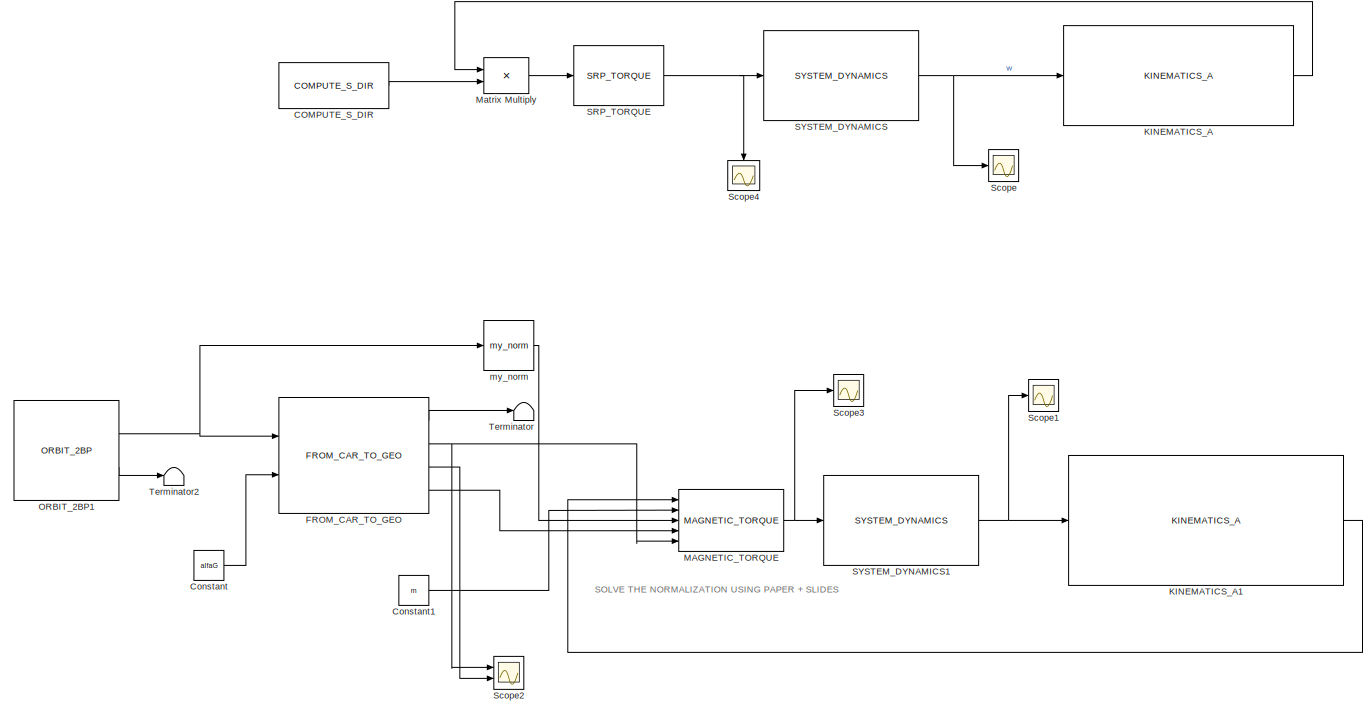
[diagram: root canvas - part 1/2, left side, full height]
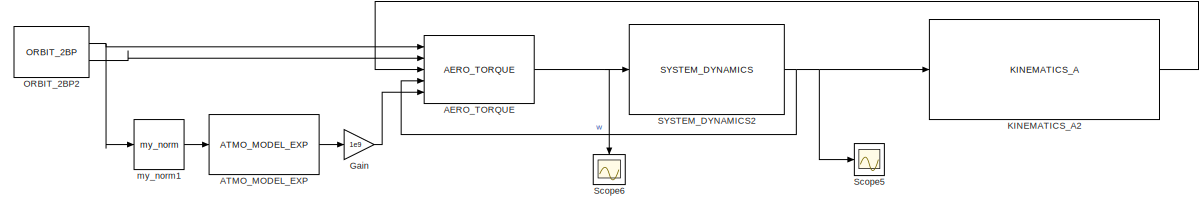
[diagram: root canvas - part 2/2, top right region]
MODEL slx_9527c434d8ad
KIND model
CONFIG AbsTol = auto
CONFIG EnableMultiTasking = off
CONFIG FixedStep = 0.01
CONFIG MaxStep = auto
CONFIG MinStep = auto
CONFIG RelTol = 1e-3
CONFIG SampleTimeConstraint = Unconstrained
CONFIG SolverName = ode8
CONFIG StartTime = 0.0
CONFIG StopTime = 1000
BLOCK [Reference] AERO_TORQUE  REF=environment/AERO_TORQUE  (lib defined in slx_0e64a065ad8c, slx_1a373574b8ee, +3 more)
  Ports = [5, 1]
  SourceBlock = environment/AERO_TORQUE
  SourceProductName = Environment
  SourceType = SubSystem
BLOCK [Reference] ATMO_MODEL_EXP  REF=environment/ATMO_MODEL_EXP  (lib defined in slx_0e64a065ad8c, slx_1a373574b8ee, +3 more)
  Ports = [1, 1]
  SourceBlock = environment/ATMO_MODEL_EXP
  SourceProductName = Environment
  SourceType = SubSystem
BLOCK [Reference] COMPUTE_S_DIR  REF=environment/COMPUTE_S_DIR  (lib defined in slx_0e64a065ad8c, slx_1a373574b8ee, +3 more)
  Ports = [0, 1]
  SourceBlock = environment/COMPUTE_S_DIR
  SourceProductName = Environment
  SourceType = SubSystem
BLOCK [Constant] Constant
  Value = alfaG
BLOCK [Constant] Constant1
  Value = m
BLOCK [Reference] FROM_CAR_TO_GEO  REF=orbit/FROM_CAR_TO_GEO  (lib defined in slx_0abda17b96cb, slx_6e64ef6db262, +1 more)
  Ports = [2, 4]
  SourceBlock = orbit/FROM_CAR_TO_GEO
  SourceProductName = Orbit
  SourceType = SubSystem
BLOCK [Gain] Gain
  Gain = 1e9
BLOCK [Reference] KINEMATICS_A  REF=kinematics/KINEMATICS_A  (lib defined in mdl_2d95649a4485, slx_49f32b38500f, +2 more)
  Ports = [1, 1]
  SourceBlock = kinematics/KINEMATICS_A
  SourceProductName = Kinematics
  SourceType = SubSystem
BLOCK [Reference] KINEMATICS_A1  REF=kinematics/KINEMATICS_A  (lib defined in mdl_2d95649a4485, slx_49f32b38500f, +2 more)
  Ports = [1, 1]
  SourceBlock = kinematics/KINEMATICS_A
  SourceProductName = Kinematics
  SourceType = SubSystem
BLOCK [Reference] KINEMATICS_A2  REF=kinematics/KINEMATICS_A  (lib defined in mdl_2d95649a4485, slx_49f32b38500f, +2 more)
  Ports = [1, 1]
  SourceBlock = kinematics/KINEMATICS_A
  SourceProductName = Kinematics
  SourceType = SubSystem
BLOCK [Reference] MAGNETIC_TORQUE  REF=environment/MAGNETIC_TORQUE  (lib defined in slx_0e64a065ad8c, slx_1a373574b8ee, +3 more)
  Ports = [5, 1]
  SourceBlock = environment/MAGNETIC_TORQUE
  SourceProductName = Environment
  SourceType = SubSystem
BLOCK [Product] Matrix Multiply
  Multiplication = Matrix(*)
  Ports = [2, 1]
BLOCK [Reference] ORBIT_2BP1  REF=orbit/ORBIT_2BP  (lib defined in slx_0abda17b96cb, slx_6e64ef6db262, +1 more)
  Ports = [0, 2]
  SourceBlock = orbit/ORBIT_2BP
  SourceProductName = Orbit
  SourceType = SubSystem
BLOCK [Reference] ORBIT_2BP2  REF=orbit/ORBIT_2BP  (lib defined in slx_0abda17b96cb, slx_6e64ef6db262, +1 more)
  Ports = [0, 2]
  SourceBlock = orbit/ORBIT_2BP
  SourceProductName = Orbit
  SourceType = SubSystem
BLOCK [Reference] SRP_TORQUE  REF=environment/SRP_TORQUE  (lib defined in slx_0e64a065ad8c, slx_1a373574b8ee, +3 more)
  Ports = [1, 1]
  SourceBlock = environment/SRP_TORQUE
  SourceProductName = Environment
  SourceType = SubSystem
BLOCK [Reference] SYSTEM_DYNAMICS  REF=dynamics/SYSTEM_DYNAMICS  (lib defined in slx_06758dd8f563, slx_0a41d2eeeb32, +20 more)
  Ports = [1, 1]
  SourceBlock = dynamics/SYSTEM_DYNAMICS
  SourceProductName = Dynamics
  SourceType = SubSystem
BLOCK [Reference] SYSTEM_DYNAMICS1  REF=dynamics/SYSTEM_DYNAMICS  (lib defined in slx_06758dd8f563, slx_0a41d2eeeb32, +20 more)
  Ports = [1, 1]
  SourceBlock = dynamics/SYSTEM_DYNAMICS
  SourceProductName = Dynamics
  SourceType = SubSystem
BLOCK [Reference] SYSTEM_DYNAMICS2  REF=dynamics/SYSTEM_DYNAMICS  (lib defined in slx_06758dd8f563, slx_0a41d2eeeb32, +20 more)
  Ports = [1, 1]
  SourceBlock = dynamics/SYSTEM_DYNAMICS
  SourceProductName = Dynamics
  SourceType = SubSystem
BLOCK [Scope] Scope
  Floating = off
  NumInputPorts = 1
  Ports = [1]
  ScopeSpecificationString = Simulink.scopes.TimeScopeBlockCfg('CurrentConfiguration', extmgr.ConfigurationSet(extmgr.Configuration('Core','General UI',true),extmgr.Configuration('Core','Source UI',true),extmgr.Configuration('Sources','WiredSimulink',true),extmgr.Configuration('Visuals','Time Domain',true,'SerializedDisplays',{struct('MinYLimReal','-0.9327','MaxYLimReal','0.9327','YLabelReal','','MinYLimMag','0.00000','MaxYLi...<+1422ch>
BLOCK [Scope] Scope1
  Floating = off
  NumInputPorts = 1
  Ports = [1]
  ScopeSpecificationString = Simulink.scopes.TimeScopeBlockCfg('CurrentConfiguration', extmgr.ConfigurationSet(extmgr.Configuration('Core','General UI',true),extmgr.Configuration('Core','Source UI',true),extmgr.Configuration('Sources','WiredSimulink',true,'DataLoggingVariableName','ScopeData1'),extmgr.Configuration('Visuals','Time Domain',true,'SerializedDisplays',{struct('MinYLimReal','-0.93271','MaxYLimReal','0.93271','YLab...<+1453ch>
BLOCK [Scope] Scope2
  Floating = off
  NumInputPorts = 2
  Ports = [2]
  ScopeSpecificationString = Simulink.scopes.TimeScopeBlockCfg('CurrentConfiguration', extmgr.ConfigurationSet(extmgr.Configuration('Core','General UI',true),extmgr.Configuration('Core','Source UI',true),extmgr.Configuration('Sources','WiredSimulink',true,'DataLoggingVariableName','ScopeData2'),extmgr.Configuration('Visuals','Time Domain',true,'SerializedDisplays',{struct('MinYLimReal','-0.19635','MaxYLimReal','1.76715','YLab...<+1449ch>
BLOCK [Scope] Scope3
  Floating = off
  NumInputPorts = 1
  Ports = [1]
  ScopeSpecificationString = Simulink.scopes.TimeScopeBlockCfg('CurrentConfiguration', extmgr.ConfigurationSet(extmgr.Configuration('Core','General UI',true),extmgr.Configuration('Core','Source UI',true),extmgr.Configuration('Sources','WiredSimulink',true,'DataLoggingVariableName','ScopeData3'),extmgr.Configuration('Visuals','Time Domain',true,'SerializedDisplays',{struct('MinYLimReal','-0.0000048','MaxYLimReal','0.0000048','...<+1459ch>
BLOCK [Scope] Scope4
  Floating = off
  NameLocation = left
  NumInputPorts = 1
  Ports = [1]
  ScopeSpecificationString = Simulink.scopes.TimeScopeBlockCfg('CurrentConfiguration', extmgr.ConfigurationSet(extmgr.Configuration('Core','General UI',true),extmgr.Configuration('Core','Source UI',true),extmgr.Configuration('Sources','WiredSimulink',true,'DataLoggingVariableName','ScopeData1'),extmgr.Configuration('Visuals','Time Domain',true,'SerializedDisplays',{struct('MinYLimReal','-0.000000000000000000000011','MaxYLimRe...<+1650ch>
BLOCK [Scope] Scope5
  Floating = off
  NumInputPorts = 1
  Ports = [1]
  ScopeSpecificationString = Simulink.scopes.TimeScopeBlockCfg('CurrentConfiguration', extmgr.ConfigurationSet(extmgr.Configuration('Core','General UI',true),extmgr.Configuration('Core','Source UI',true),extmgr.Configuration('Sources','WiredSimulink',true,'DataLoggingVariableName','ScopeData1'),extmgr.Configuration('Visuals','Time Domain',true,'SerializedDisplays',{struct('MinYLimReal','0.7167','MaxYLimReal','0.7652','YLabelR...<+1798ch>
BLOCK [Scope] Scope6
  Floating = off
  NameLocation = left
  NumInputPorts = 1
  Ports = [1]
  ScopeSpecificationString = Simulink.scopes.TimeScopeBlockCfg('CurrentConfiguration', extmgr.ConfigurationSet(extmgr.Configuration('Core','General UI',true),extmgr.Configuration('Core','Source UI',true),extmgr.Configuration('Sources','WiredSimulink',true,'DataLoggingVariableName','ScopeData2'),extmgr.Configuration('Visuals','Time Domain',true,'SerializedDisplays',{struct('MinYLimReal','-0.0000049','MaxYLimReal','0.0000049','...<+1447ch>
BLOCK [Terminator] Terminator
BLOCK [Terminator] Terminator2
BLOCK [Reference] my_norm  REF=my_math_ops/my_norm  (lib defined in slx_67cfba16120e)
  Ports = [1, 1]
  SourceBlock = my_math_ops/my_norm
  SourceProductName = My Mathematics Operations
  SourceType = SubSystem
BLOCK [Reference] my_norm1  REF=my_math_ops/my_norm  (lib defined in slx_67cfba16120e)
  Ports = [1, 1]
  SourceBlock = my_math_ops/my_norm
  SourceProductName = My Mathematics Operations
  SourceType = SubSystem
ANNOTATION (root): SOLVE THE NORMALIZATION USING PAPER + SLIDES
NET AERO_TORQUE:1 -> SYSTEM_DYNAMICS2:1, Scope6:1
LINE ATMO_MODEL_EXP:1 -> Gain:1
LINE COMPUTE_S_DIR:1 -> Matrix Multiply:2
LINE Constant1:1 -> MAGNETIC_TORQUE:2
LINE Constant:1 -> FROM_CAR_TO_GEO:2
LINE FROM_CAR_TO_GEO:1 -> Terminator:1
NET FROM_CAR_TO_GEO:2 -> MAGNETIC_TORQUE:5, Scope2:1
LINE FROM_CAR_TO_GEO:3 -> Scope2:2
LINE FROM_CAR_TO_GEO:4 -> MAGNETIC_TORQUE:4
LINE Gain:1 -> AERO_TORQUE:5
LINE KINEMATICS_A1:1 -> MAGNETIC_TORQUE:1
LINE KINEMATICS_A2:1 -> AERO_TORQUE:3
LINE KINEMATICS_A:1 -> Matrix Multiply:1
NET MAGNETIC_TORQUE:1 -> SYSTEM_DYNAMICS1:1, Scope3:1
LINE Matrix Multiply:1 -> SRP_TORQUE:1
NET ORBIT_2BP1:1 -> FROM_CAR_TO_GEO:1, my_norm:1
LINE ORBIT_2BP1:2 -> Terminator2:1
NET ORBIT_2BP2:1 -> AERO_TORQUE:1, my_norm1:1
LINE ORBIT_2BP2:2 -> AERO_TORQUE:2
NET SRP_TORQUE:1 -> SYSTEM_DYNAMICS:1, Scope4:1
NET SYSTEM_DYNAMICS1:1 -> KINEMATICS_A1:1, Scope1:1
NET SYSTEM_DYNAMICS2:1 -> AERO_TORQUE:4, KINEMATICS_A2:1, Scope5:1
NET SYSTEM_DYNAMICS:1 -> KINEMATICS_A:1, Scope:1
LINE my_norm1:1 -> ATMO_MODEL_EXP:1
LINE my_norm:1 -> MAGNETIC_TORQUE:3
note: NET lines group one-source signal fan-out (src -> all destinations, sorted); 1:1 wires keep LINE
